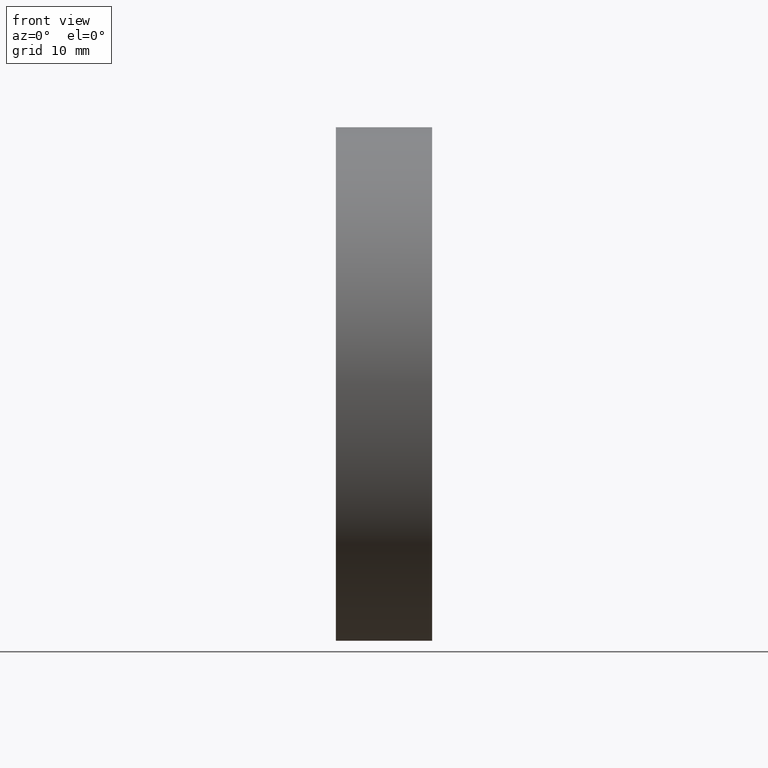
[diagram: clean part render]
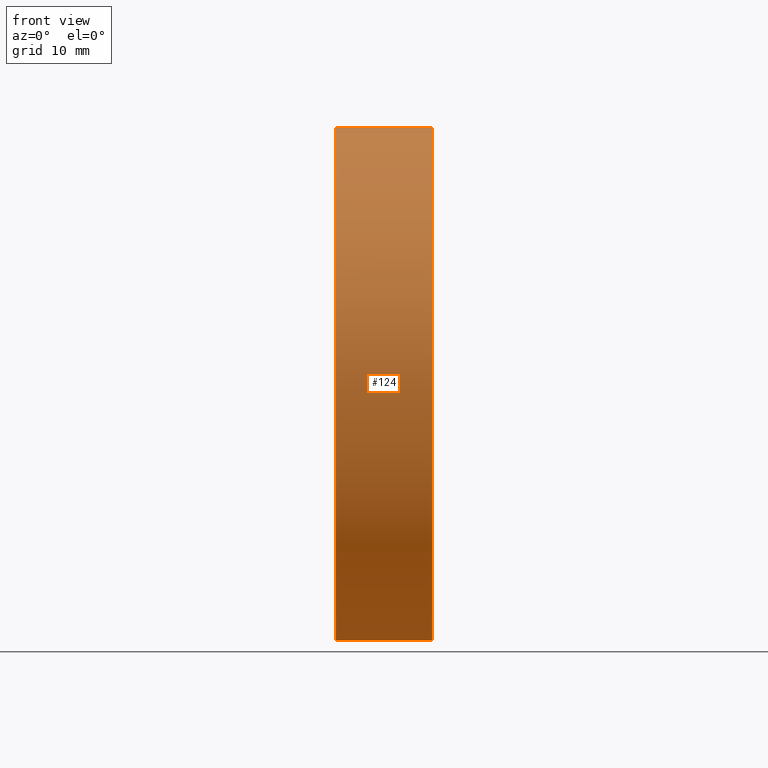
[diagram: same view with one face highlighted and labeled with its STEP entity id]
A machine part, front view. The second image highlights one B-rep face of the part: STEP entity #124.
In plain terms, the highlighted cylindrical surface (partial cylindrical patch) has radius 25.4 mm, axis along (-1, -0, -0).
Its self-contained STEP definition (entity closure, byte-faithful):
#1 = CIRCLE ( 'NONE', #58, 25.40000000000004800 ) ;
#7 = DIRECTION ( 'NONE',  ( -1.000000000000000000, -0.0000000000000000000, -0.0000000000000000000 ) ) ;
#8 = CARTESIAN_POINT ( 'NONE',  ( 0.0000000000000000000, 0.0000000000000000000, 25.39999999999999900 ) ) ;
#13 = DIRECTION ( 'NONE',  ( -1.000000000000000000, -0.0000000000000000000, -0.0000000000000000000 ) ) ;
#19 = CARTESIAN_POINT ( 'NONE',  ( 9.529456599191659500, 0.0000000000000000000, 0.0000000000000000000 ) ) ;
#37 = VERTEX_POINT ( 'NONE', #95 ) ;
#43 = ORIENTED_EDGE ( 'NONE', *, *, #159, .F. ) ;
#49 = VERTEX_POINT ( 'NONE', #52 ) ;
#51 = LINE ( 'NONE', #122, #78 ) ;
#52 = CARTESIAN_POINT ( 'NONE',  ( 0.0000000000000000000, 3.110602869834278400E-015, -25.39999999999999900 ) ) ;
#58 = AXIS2_PLACEMENT_3D ( 'NONE', #19, #87, #160 ) ;
#62 = CIRCLE ( 'NONE', #72, 25.39999999999999900 ) ;
#65 = VECTOR ( 'NONE', #88, 1000.000000000000000 ) ;
#72 = AXIS2_PLACEMENT_3D ( 'NONE', #125, #13, #106 ) ;
#75 = EDGE_LOOP ( 'NONE', ( #90, #89, #165, #43 ) ) ;
#77 = DIRECTION ( 'NONE',  ( -1.000000000000000000, -0.0000000000000000000, -0.0000000000000000000 ) ) ;
#78 = VECTOR ( 'NONE', #7, 1000.000000000000000 ) ;
#79 = CARTESIAN_POINT ( 'NONE',  ( 0.0000000000000000000, 0.0000000000000000000, 0.0000000000000000000 ) ) ;
#87 = DIRECTION ( 'NONE',  ( -1.000000000000000000, -0.0000000000000000000, -0.0000000000000000000 ) ) ;
#88 = DIRECTION ( 'NONE',  ( -1.000000000000000000, -0.0000000000000000000, -0.0000000000000000000 ) ) ;
#89 = ORIENTED_EDGE ( 'NONE', *, *, #166, .T. ) ;
#90 = ORIENTED_EDGE ( 'NONE', *, *, #142, .F. ) ;
#91 = CARTESIAN_POINT ( 'NONE',  ( 9.529456599191659500, 3.110602869834278400E-015, -25.40000000000001300 ) ) ;
#94 = CYLINDRICAL_SURFACE ( 'NONE', #109, 25.40000000000002300 ) ;
#95 = CARTESIAN_POINT ( 'NONE',  ( 9.529456599191659500, 0.0000000000000000000, 25.40000000000001300 ) ) ;
#106 = DIRECTION ( 'NONE',  ( 0.0000000000000000000, 0.0000000000000000000, 1.000000000000000000 ) ) ;
#109 = AXIS2_PLACEMENT_3D ( 'NONE', #79, #77, #113 ) ;
#112 = LINE ( 'NONE', #162, #65 ) ;
#113 = DIRECTION ( 'NONE',  ( 0.0000000000000000000, 0.0000000000000000000, 1.000000000000000000 ) ) ;
#122 = CARTESIAN_POINT ( 'NONE',  ( 0.0000000000000000000, 3.110602869834280000E-015, -25.40000000000002300 ) ) ;
#124 = ADVANCED_FACE ( 'NONE', ( #161 ), #94, .T. ) ;
#125 = CARTESIAN_POINT ( 'NONE',  ( 0.0000000000000000000, 0.0000000000000000000, 0.0000000000000000000 ) ) ;
#127 = EDGE_CURVE ( 'NONE', #37, #151, #112, .T. ) ;
#142 = EDGE_CURVE ( 'NONE', #155, #49, #51, .T. ) ;
#151 = VERTEX_POINT ( 'NONE', #8 ) ;
#155 = VERTEX_POINT ( 'NONE', #91 ) ;
#159 = EDGE_CURVE ( 'NONE', #49, #151, #62, .T. ) ;
#160 = DIRECTION ( 'NONE',  ( 0.0000000000000000000, 0.0000000000000000000, 1.000000000000000000 ) ) ;
#161 = FACE_OUTER_BOUND ( 'NONE', #75, .T. ) ;
#162 = CARTESIAN_POINT ( 'NONE',  ( 0.0000000000000000000, 0.0000000000000000000, 25.40000000000002300 ) ) ;
#165 = ORIENTED_EDGE ( 'NONE', *, *, #127, .T. ) ;
#166 = EDGE_CURVE ( 'NONE', #155, #37, #1, .T. ) ;